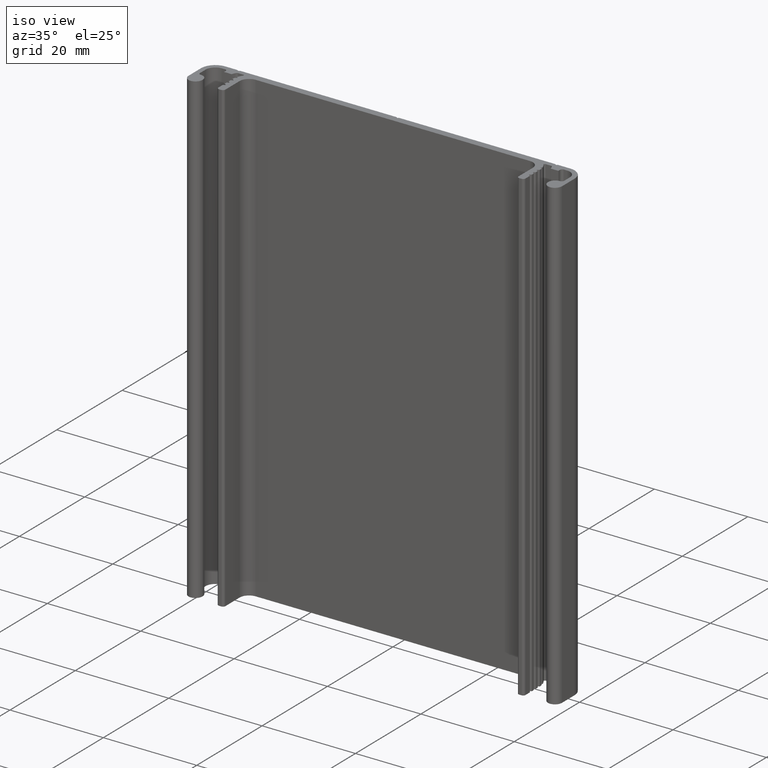
[diagram: clean part render]
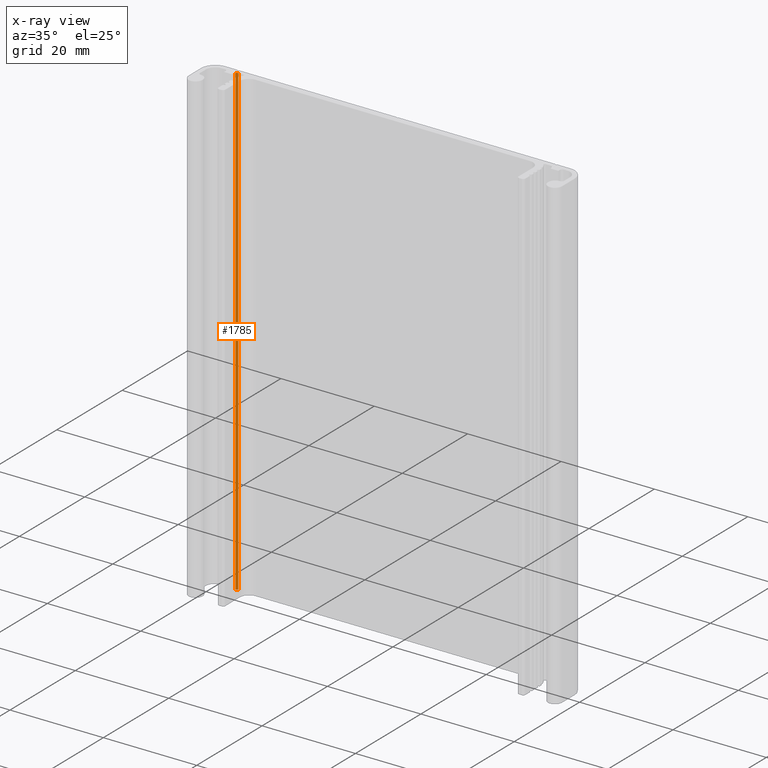
[diagram: x-ray — body ghosted, one internal face saturated and labeled with its STEP entity id]
A machine part, iso view, then the same camera in x-ray: the body is ghosted and one INTERNAL B-rep face — a face not visible from any outside direction — is saturated and labeled: STEP entity #1785.
In plain terms, the highlighted cylindrical surface (edge-blend (fillet) strip) has radius 0.5 mm, axis along (0, 0, 1).
Its self-contained STEP definition (entity closure, byte-faithful):
#47=CIRCLE('',#1912,0.500000000590082);
#48=CIRCLE('',#1913,0.500000000590082);
#109=CYLINDRICAL_SURFACE('',#1911,0.500000000590082);
#174=FACE_OUTER_BOUND('',#266,.T.);
#266=EDGE_LOOP('',(#1318,#1319,#1320,#1321));
#410=LINE('',#2796,#602);
#411=LINE('',#2802,#603);
#602=VECTOR('',#2251,100.);
#603=VECTOR('',#2258,100.);
#784=VERTEX_POINT('',#2792);
#785=VERTEX_POINT('',#2794);
#786=VERTEX_POINT('',#2798);
#787=VERTEX_POINT('',#2800);
#1006=EDGE_CURVE('',#784,#785,#410,.T.);
#1007=EDGE_CURVE('',#786,#784,#47,.T.);
#1008=EDGE_CURVE('',#787,#785,#48,.T.);
#1009=EDGE_CURVE('',#786,#787,#411,.T.);
#1318=ORIENTED_EDGE('',*,*,#1007,.T.);
#1319=ORIENTED_EDGE('',*,*,#1006,.T.);
#1320=ORIENTED_EDGE('',*,*,#1008,.F.);
#1321=ORIENTED_EDGE('',*,*,#1009,.F.);
#1785=ADVANCED_FACE('',(#174),#109,.F.);
#1911=AXIS2_PLACEMENT_3D('',#2797,#2252,#2253);
#1912=AXIS2_PLACEMENT_3D('',#2799,#2254,#2255);
#1913=AXIS2_PLACEMENT_3D('',#2801,#2256,#2257);
#2251=DIRECTION('',(0.,0.,1.));
#2252=DIRECTION('center_axis',(0.,0.,1.));
#2253=DIRECTION('ref_axis',(8.88178418651929E-15,-1.,0.));
#2254=DIRECTION('center_axis',(0.,0.,-1.));
#2255=DIRECTION('ref_axis',(8.88178418651929E-15,-1.,0.));
#2256=DIRECTION('center_axis',(0.,0.,-1.));
#2257=DIRECTION('ref_axis',(8.88178418651929E-15,-1.,0.));
#2258=DIRECTION('',(0.,0.,1.));
#2792=CARTESIAN_POINT('',(-33.4311288672676,0.500000029234399,0.));
#2794=CARTESIAN_POINT('',(-33.4311288672676,0.5000000292344,100.));
#2796=CARTESIAN_POINT('',(-33.4311288672676,0.500000029234399,0.));
#2797=CARTESIAN_POINT('Origin',(-33.4311288672676,2.86443169184025E-8,0.));
#2798=CARTESIAN_POINT('',(-33.8790320772676,0.222222248644388,0.));
#2799=CARTESIAN_POINT('Origin',(-33.4311288672676,2.86443169184025E-8,0.));
#2800=CARTESIAN_POINT('',(-33.8790320772676,0.222222248644388,100.));
#2801=CARTESIAN_POINT('Origin',(-33.4311288672676,2.86443169184025E-8,100.));
#2802=CARTESIAN_POINT('',(-33.8790320772676,0.222222248644388,0.));